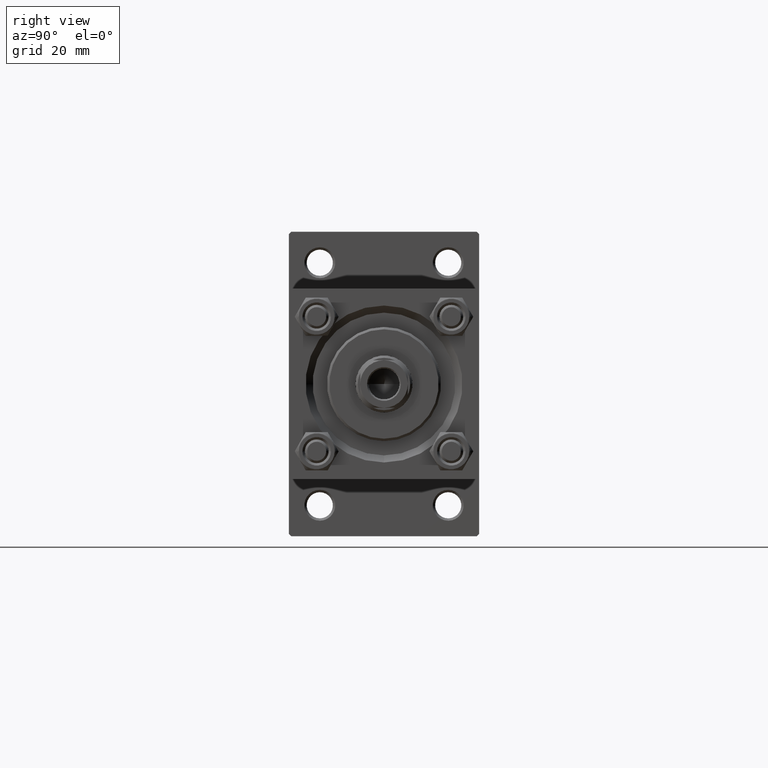
[diagram: clean part render]
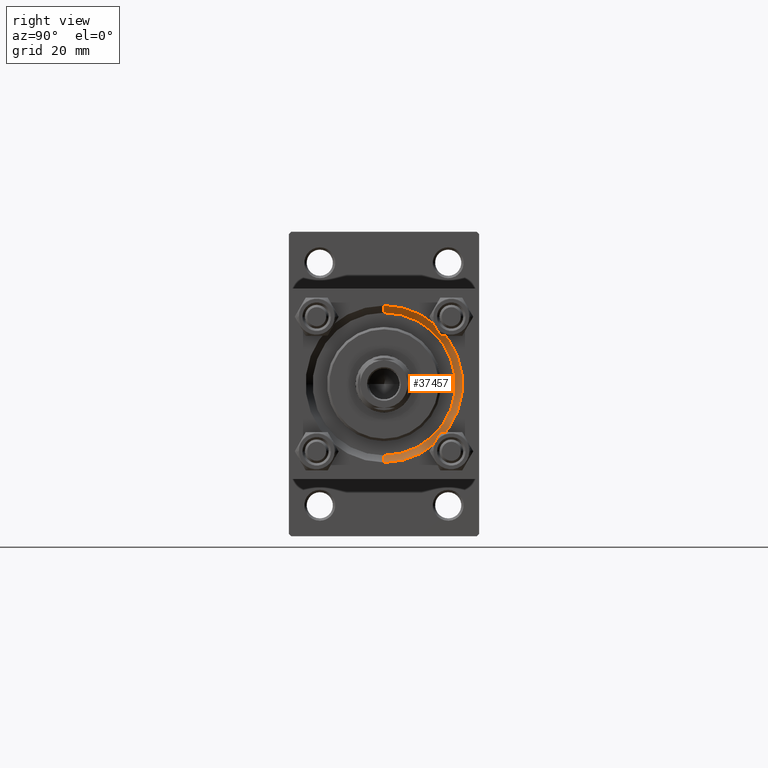
[diagram: same view with one face highlighted and labeled with its STEP entity id]
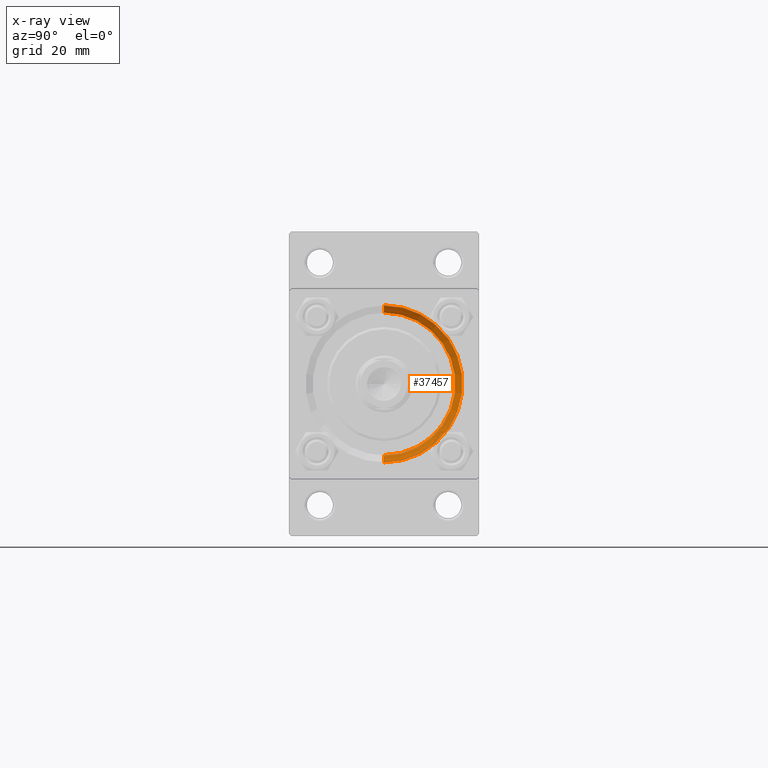
[diagram: x-ray of the same camera — body ghosted, the highlighted face saturated]
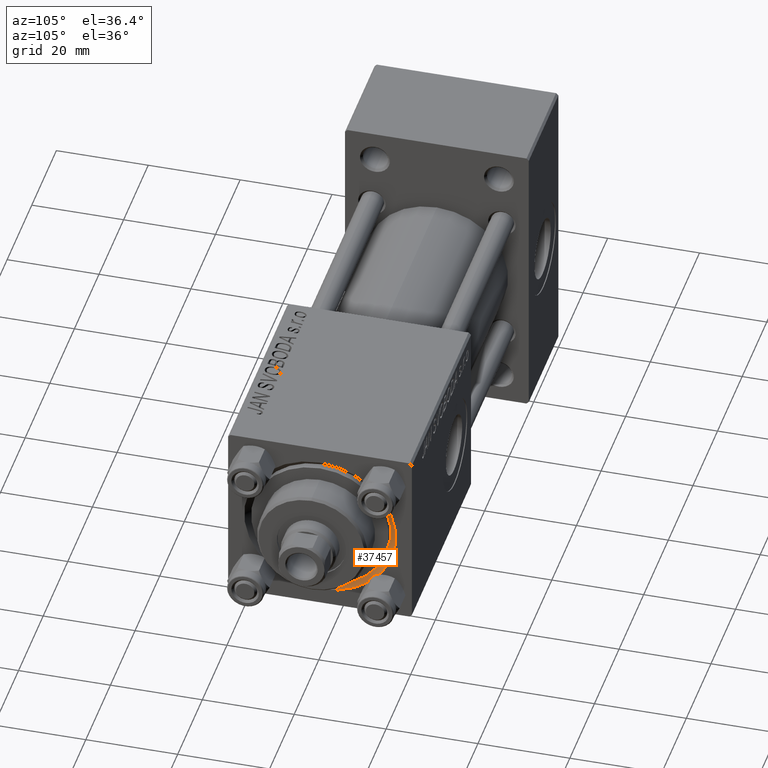
[diagram: same view with one face highlighted and labeled with its STEP entity id]
A machine part, right view. The second image highlights one B-rep face of the part: STEP entity #37457.
The next image is the same camera in x-ray: the body ghosted, the highlighted face saturated — about 0% of this face is hidden behind the body in this view.
A second angle (auxiliary view) of the same face is appended — the face is thin or edge-on in the first view.
In plain terms, the highlighted conical surface has half-angle 45 deg.
Its self-contained STEP definition (entity closure, byte-faithful):
#786 = DIRECTION ( 'NONE',  ( 0.000000000000000000, 0.000000000000000000, 1.000000000000000000 ) ) ;
#1493 = ORIENTED_EDGE ( 'NONE', *, *, #32727, .F. ) ;
#2560 = DIRECTION ( 'NONE',  ( 1.000000000000000000, 0.000000000000000000, 0.000000000000000000 ) ) ;
#3571 = DIRECTION ( 'NONE',  ( -1.000000000000000000, -0.000000000000000000, -0.000000000000000000 ) ) ;
#6199 = VERTEX_POINT ( 'NONE', #28982 ) ;
#7083 = CARTESIAN_POINT ( 'NONE',  ( 117.5000000000000142, 0.000000000000000000, 0.000000000000000000 ) ) ;
#10830 = CIRCLE ( 'NONE', #32590, 16.49999999999998579 ) ;
#11075 = AXIS2_PLACEMENT_3D ( 'NONE', #7083, #47646, #20632 ) ;
#12561 = VECTOR ( 'NONE', #44107, 1000.000000000000114 ) ;
#13290 = LINE ( 'NONE', #28692, #12561 ) ;
#13764 = CARTESIAN_POINT ( 'NONE',  ( 119.0000000000000142, 0.000000000000000000, -16.49999999999998579 ) ) ;
#14613 = LINE ( 'NONE', #32628, #26346 ) ;
#15628 = ORIENTED_EDGE ( 'NONE', *, *, #44784, .T. ) ;
#18824 = CONICAL_SURFACE ( 'NONE', #45431, 15.00000000000000000, 0.7853981633974437271 ) ;
#18830 = CARTESIAN_POINT ( 'NONE',  ( 117.5000000000000142, 1.836970198721029589E-15, 15.00000000000000000 ) ) ;
#19320 = ORIENTED_EDGE ( 'NONE', *, *, #35881, .F. ) ;
#20632 = DIRECTION ( 'NONE',  ( 0.000000000000000000, 0.000000000000000000, 1.000000000000000000 ) ) ;
#20750 = CARTESIAN_POINT ( 'NONE',  ( 117.5000000000000142, 0.000000000000000000, 0.000000000000000000 ) ) ;
#20792 = VERTEX_POINT ( 'NONE', #13764 ) ;
#21013 = DIRECTION ( 'NONE',  ( 0.7071067811865507924, 0.000000000000000000, -0.7071067811865441310 ) ) ;
#23864 = EDGE_CURVE ( 'NONE', #34486, #20792, #10830, .T. ) ;
#26346 = VECTOR ( 'NONE', #21013, 1000.000000000000114 ) ;
#27205 = ORIENTED_EDGE ( 'NONE', *, *, #23864, .F. ) ;
#28692 = CARTESIAN_POINT ( 'NONE',  ( 117.5000000000000142, 1.836970198721029589E-15, 15.00000000000000000 ) ) ;
#28982 = CARTESIAN_POINT ( 'NONE',  ( 117.5000000000000142, 0.000000000000000000, -15.00000000000000000 ) ) ;
#32590 = AXIS2_PLACEMENT_3D ( 'NONE', #46978, #3571, #786 ) ;
#32628 = CARTESIAN_POINT ( 'NONE',  ( 117.5000000000000142, 0.000000000000000000, -15.00000000000000000 ) ) ;
#32727 = EDGE_CURVE ( 'NONE', #41059, #34486, #13290, .T. ) ;
#34486 = VERTEX_POINT ( 'NONE', #44099 ) ;
#35881 = EDGE_CURVE ( 'NONE', #6199, #41059, #47331, .T. ) ;
#37457 = ADVANCED_FACE ( 'NONE', ( #44979 ), #18824, .F. ) ;
#41059 = VERTEX_POINT ( 'NONE', #18830 ) ;
#43095 = EDGE_LOOP ( 'NONE', ( #1493, #19320, #15628, #27205 ) ) ;
#43993 = DIRECTION ( 'NONE',  ( 0.000000000000000000, 0.000000000000000000, -1.000000000000000000 ) ) ;
#44099 = CARTESIAN_POINT ( 'NONE',  ( 119.0000000000000142, 2.020667218593131128E-15, 16.49999999999998579 ) ) ;
#44107 = DIRECTION ( 'NONE',  ( 0.7071067811865507924, 8.659560562354892183E-17, 0.7071067811865441310 ) ) ;
#44784 = EDGE_CURVE ( 'NONE', #6199, #20792, #14613, .T. ) ;
#44979 = FACE_OUTER_BOUND ( 'NONE', #43095, .T. ) ;
#45431 = AXIS2_PLACEMENT_3D ( 'NONE', #20750, #2560, #43993 ) ;
#46978 = CARTESIAN_POINT ( 'NONE',  ( 119.0000000000000142, 0.000000000000000000, 0.000000000000000000 ) ) ;
#47331 = CIRCLE ( 'NONE', #11075, 15.00000000000000000 ) ;
#47646 = DIRECTION ( 'NONE',  ( 1.000000000000000000, 0.000000000000000000, 0.000000000000000000 ) ) ;